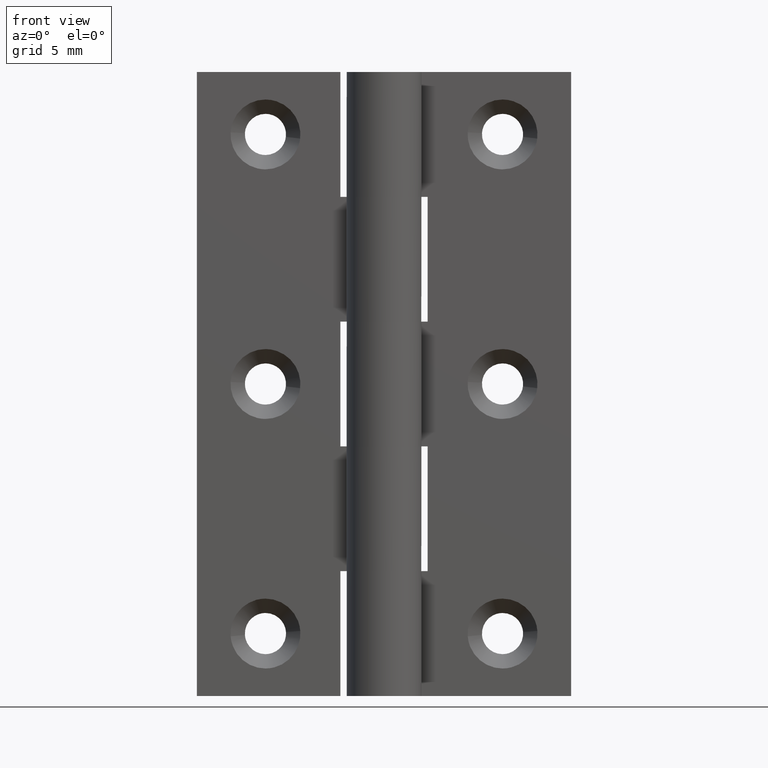
[diagram: clean part render]
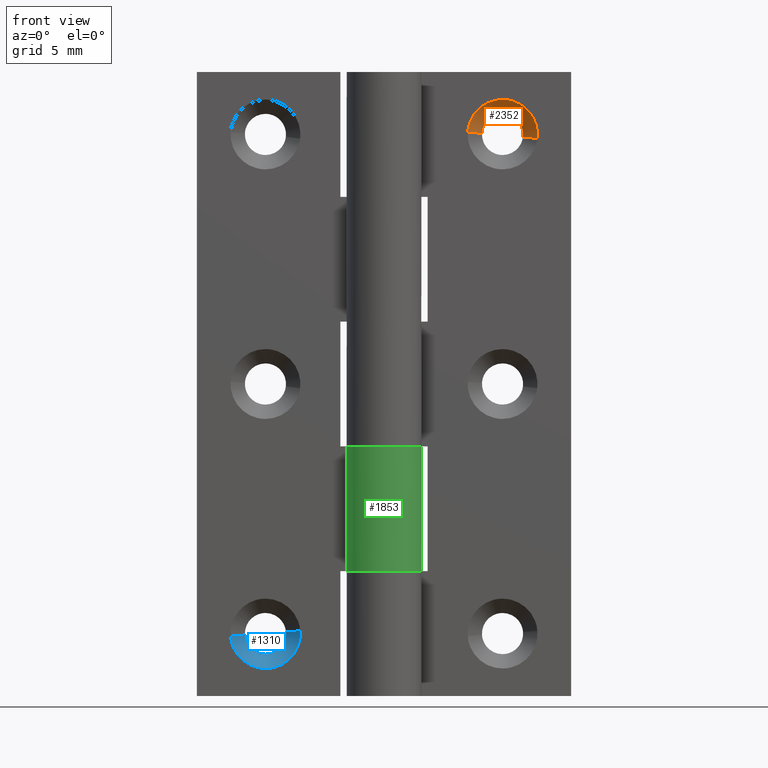
[diagram: same view with three faces highlighted in distinct colors, each labeled with its STEP entity id]
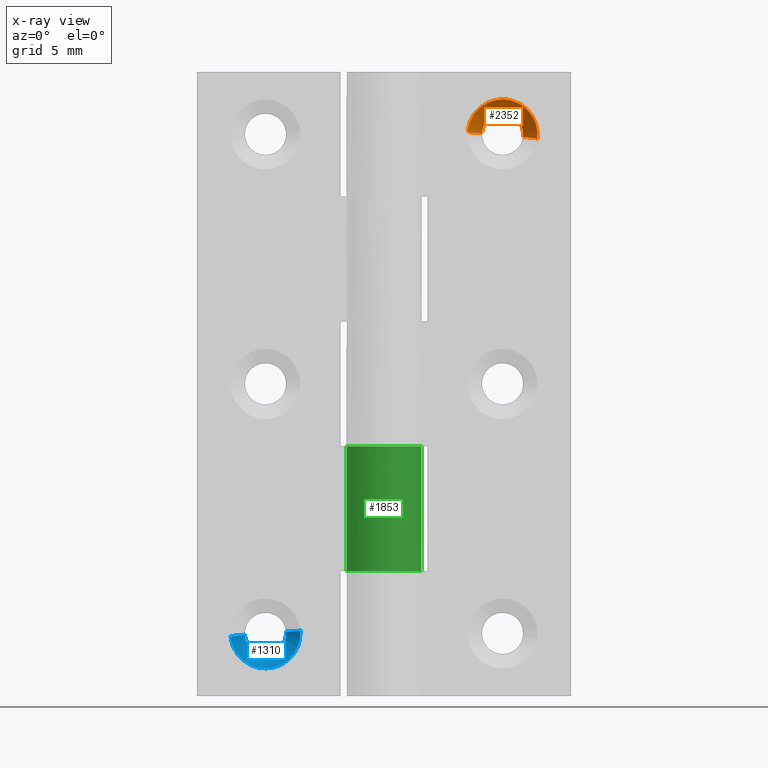
[diagram: x-ray of the same camera — body ghosted, the three highlighted faces saturated]
A machine part, front view with three faces highlighted in distinct colors.
The next image is the same camera in x-ray (body ghosted, the three faces saturated) — at least one of them is partly hidden behind the body in this view.
Their STEP definitions:

[orange] entity #2352 — the highlighted face is a freeform B-spline surface patch.
#2086=CARTESIAN_POINT('',(11.138465718506060,2.649999999909051,44.805243512096368));
#2087=VERTEX_POINT('',#2086);
#2088=CARTESIAN_POINT('',(10.387453809190960,2.650000000000000,46.391016080623253));
#2089=VERTEX_POINT('',#2088);
#2090=CARTESIAN_POINT('',(11.138465718506053,2.649999999909051,44.805243512096361));
#2091=CARTESIAN_POINT('',(11.149999999999995,2.650000000000000,44.902280201857614));
#2092=CARTESIAN_POINT('',(11.150000000000000,2.650000000000000,45.0));
#2093=CARTESIAN_POINT('',(11.150000000000002,2.649999999999999,45.904519532416984));
#2094=CARTESIAN_POINT('',(10.387453809190955,2.650000000000000,46.391016080623238));
#2102=(BOUNDED_CURVE()B_SPLINE_CURVE(2,(#2090,#2091,#2092,#2093,#2094),.UNSPECIFIED.,.F.,.U.)B_SPLINE_CURVE_WITH_KNOTS((3,2,3),(0.229562473369331,0.250000000000000,0.407950112626534),.UNSPECIFIED.)CURVE()GEOMETRIC_REPRESENTATION_ITEM()RATIONAL_B_SPLINE_CURVE((0.956026753901106,0.976055948162231,1.0,0.814949932403469,0.863729296954296))REPRESENTATION_ITEM(''));
#2103=EDGE_CURVE('',#2087,#2089,#2102,.T.);
#2146=CARTESIAN_POINT('',(7.855086399345256,2.650000000000000,45.129457508013417));
#2147=VERTEX_POINT('',#2146);
#2153=CARTESIAN_POINT('',(7.853077582591906,2.649999999977809,45.100730090399587));
#2154=VERTEX_POINT('',#2153);
#2155=CARTESIAN_POINT('',(7.855086399345256,2.650000000000000,45.129457508013417));
#2156=CARTESIAN_POINT('',(7.853956640800782,2.650000000000000,45.115102564658841));
#2157=CARTESIAN_POINT('',(7.853077582591906,2.649999999977809,45.100730090399580));
#2165=(BOUNDED_CURVE()B_SPLINE_CURVE(2,(#2155,#2156,#2157),.UNSPECIFIED.,.F.,.U.)B_SPLINE_CURVE_WITH_KNOTS((3,3),(0.736331300619747,0.739332962207245),.UNSPECIFIED.)CURVE()GEOMETRIC_REPRESENTATION_ITEM()RATIONAL_B_SPLINE_CURVE((0.969723356144644,0.972855475515166,0.976072041598783))REPRESENTATION_ITEM(''));
#2166=EDGE_CURVE('',#2147,#2154,#2165,.T.);
#2219=CARTESIAN_POINT('',(9.500000000000000,2.650000000000000,46.649999999999999));
#2220=VERTEX_POINT('',#2219);
#2221=CARTESIAN_POINT('',(10.387453809190955,2.650000000000000,46.391016080623245));
#2222=CARTESIAN_POINT('',(9.981516291381862,2.650000000000000,46.649999999999999));
#2223=CARTESIAN_POINT('',(9.500000000000000,2.650000000000000,46.649999999999999));
#2231=(BOUNDED_CURVE()B_SPLINE_CURVE(2,(#2221,#2222,#2223),.UNSPECIFIED.,.F.,.U.)B_SPLINE_CURVE_WITH_KNOTS((3,3),(0.407950112626534,0.500000000000000),.UNSPECIFIED.)CURVE()GEOMETRIC_REPRESENTATION_ITEM()RATIONAL_B_SPLINE_CURVE((0.863729296954296,0.892156848783079,1.0))REPRESENTATION_ITEM(''));
#2232=EDGE_CURVE('',#2089,#2220,#2231,.T.);
#2234=CARTESIAN_POINT('',(9.500000000000000,2.650000000000000,46.649999999999999));
#2235=CARTESIAN_POINT('',(7.974755688880155,2.650000000000000,46.649999999999999));
#2236=CARTESIAN_POINT('',(7.855086399345256,2.650000000000000,45.129457508013417));
#2244=(BOUNDED_CURVE()B_SPLINE_CURVE(2,(#2234,#2235,#2236),.UNSPECIFIED.,.F.,.U.)B_SPLINE_CURVE_WITH_KNOTS((3,3),(0.500000000000000,0.736331300619748),.UNSPECIFIED.)CURVE()GEOMETRIC_REPRESENTATION_ITEM()RATIONAL_B_SPLINE_CURVE((1.0,0.723120658620450,0.969723356144645))REPRESENTATION_ITEM(''));
#2245=EDGE_CURVE('',#2220,#2147,#2244,.T.);
#2280=CARTESIAN_POINT('',(11.109916694617093,2.678750000000000,44.808636997062735));
#2281=CARTESIAN_POINT('',(11.115393421546051,2.678750000000000,44.854712121195682));
#2282=CARTESIAN_POINT('',(11.118226041941449,2.678750000000000,44.901025055279113));
#2283=CARTESIAN_POINT('',(11.217200986662336,2.678750000000001,46.519251097220575));
#2284=CARTESIAN_POINT('',(9.598974944720887,2.678750000000000,46.618226041941448));
#2285=CARTESIAN_POINT('',(7.980748902779437,2.678750000000001,46.717200986662334));
#2286=CARTESIAN_POINT('',(7.881773958058551,2.678750000000000,45.098974944720887));
#2287=CARTESIAN_POINT('',(12.309689423298293,1.470531250000000,44.666025821608550));
#2288=CARTESIAN_POINT('',(12.319247620798849,1.470531250000000,44.746437925779112));
#2289=CARTESIAN_POINT('',(12.324191220422220,1.470531250000000,44.827265065152993));
#2290=CARTESIAN_POINT('',(12.496926155269239,1.470531250000000,47.651456285575193));
#2291=CARTESIAN_POINT('',(9.672734934847018,1.470531250000000,47.824191220422222));
#2292=CARTESIAN_POINT('',(6.848543714424797,1.470531250000000,47.996926155269243));
#2293=CARTESIAN_POINT('',(6.675808779577778,1.470531250000000,45.172734934847007));
#2301=(BOUNDED_SURFACE()B_SPLINE_SURFACE(2,1,((#2280,#2287),(#2281,#2288),(#2282,#2289),(#2283,#2290),(#2284,#2291),(#2285,#2292),(#2286,#2293)),.UNSPECIFIED.,.F.,.F.,.U.)B_SPLINE_SURFACE_WITH_KNOTS((3,2,2,3),(2,2),(0.0,0.187520692889736,4.875538015133133,9.563555337376529),(0.0,1.0),.UNSPECIFIED.)GEOMETRIC_REPRESENTATION_ITEM()RATIONAL_B_SPLINE_SURFACE(((0.977505800795127,0.977505800795127),(0.988284271247462,0.988284271247462),(1.0,1.0),(0.707106781186548,0.707106781186548),(1.0,1.0),(0.707106781186548,0.707106781186548),(1.0,1.0)))REPRESENTATION_ITEM('')SURFACE());
#2302=ORIENTED_EDGE('',*,*,#2103,.F.);
#2303=CARTESIAN_POINT('',(12.280426673819210,1.499999999984184,44.669504142834967));
#2304=VERTEX_POINT('',#2303);
#2305=CARTESIAN_POINT('',(11.138465718506060,2.649999999909051,44.805243512096368));
#2306=CARTESIAN_POINT('',(12.280426673819210,1.499999999984184,44.669504142834967));
#2307=QUASI_UNIFORM_CURVE('',1,(#2305,#2306),.UNSPECIFIED.,.F.,.U.);
#2308=EDGE_CURVE('',#2087,#2304,#2307,.T.);
#2309=ORIENTED_EDGE('',*,*,#2308,.T.);
#2310=CARTESIAN_POINT('',(9.500000000000000,1.500000000000000,47.799999999999997));
#2311=VERTEX_POINT('',#2310);
#2312=CARTESIAN_POINT('',(12.280426673819203,1.499999999984184,44.669504142834974));
#2313=CARTESIAN_POINT('',(12.300000000000002,1.500000000000000,44.834172464849104));
#2314=CARTESIAN_POINT('',(12.300000000000001,1.500000000000000,45.0));
#2315=CARTESIAN_POINT('',(12.300000000000002,1.500000000000000,47.799999999999997));
#2316=CARTESIAN_POINT('',(9.500000000000000,1.500000000000000,47.799999999999997));
#2324=(BOUNDED_CURVE()B_SPLINE_CURVE(2,(#2312,#2313,#2314,#2315,#2316),.UNSPECIFIED.,.F.,.U.)B_SPLINE_CURVE_WITH_KNOTS((3,2,3),(0.229562473500541,0.250000000000000,0.500000000000000),.UNSPECIFIED.)CURVE()GEOMETRIC_REPRESENTATION_ITEM()RATIONAL_B_SPLINE_CURVE((0.956026754158284,0.976055948315953,1.0,0.707106781186547,1.0))REPRESENTATION_ITEM(''));
#2325=EDGE_CURVE('',#2304,#2311,#2324,.T.);
#2326=ORIENTED_EDGE('',*,*,#2325,.T.);
#2327=CARTESIAN_POINT('',(6.705222564399779,1.499999999964778,45.170935910964012));
#2328=VERTEX_POINT('',#2327);
#2329=CARTESIAN_POINT('',(9.500000000000000,1.500000000000000,47.799999999999997));
#2330=CARTESIAN_POINT('',(6.866023013163102,1.500000000000000,47.800000000000018));
#2331=CARTESIAN_POINT('',(6.705222564399779,1.499999999964777,45.170935910964005));
#2339=(BOUNDED_CURVE()B_SPLINE_CURVE(2,(#2329,#2330,#2331),.UNSPECIFIED.,.F.,.U.)B_SPLINE_CURVE_WITH_KNOTS((3,3),(0.500000000000000,0.739332962209338),.UNSPECIFIED.)CURVE()GEOMETRIC_REPRESENTATION_ITEM()RATIONAL_B_SPLINE_CURVE((1.0,0.719603993321395,0.976072041603268))REPRESENTATION_ITEM(''));
#2340=EDGE_CURVE('',#2311,#2328,#2339,.T.);
#2341=ORIENTED_EDGE('',*,*,#2340,.T.);
#2342=CARTESIAN_POINT('',(7.853077582591906,2.649999999977809,45.100730090399587));
#2343=CARTESIAN_POINT('',(6.705222564399779,1.499999999964778,45.170935910964012));
#2344=QUASI_UNIFORM_CURVE('',1,(#2342,#2343),.UNSPECIFIED.,.F.,.U.);
#2345=EDGE_CURVE('',#2154,#2328,#2344,.T.);
#2346=ORIENTED_EDGE('',*,*,#2345,.F.);
#2347=ORIENTED_EDGE('',*,*,#2166,.F.);
#2348=ORIENTED_EDGE('',*,*,#2245,.F.);
#2349=ORIENTED_EDGE('',*,*,#2232,.F.);
#2350=EDGE_LOOP('',(#2302,#2309,#2326,#2341,#2346,#2347,#2348,#2349));
#2351=FACE_OUTER_BOUND('',#2350,.T.);
#2352=ADVANCED_FACE('',(#2351),#2301,.F.);

[blue] entity #1310 — the highlighted face is a freeform B-spline surface patch.
#997=CARTESIAN_POINT('',(-7.860775832950925,2.650000000000000,4.811733884720950));
#998=VERTEX_POINT('',#997);
#999=CARTESIAN_POINT('',(-9.500000000000000,2.650000000000000,3.350000000000000));
#1000=VERTEX_POINT('',#999);
#1001=CARTESIAN_POINT('',(-7.860775832950925,2.650000000000000,4.811733884720950));
#1002=CARTESIAN_POINT('',(-8.028657073915877,2.650000000000000,3.350000000000001));
#1003=CARTESIAN_POINT('',(-9.500000000000000,2.650000000000000,3.350000000000000));
#1011=(BOUNDED_CURVE()B_SPLINE_CURVE(2,(#1001,#1002,#1003),.UNSPECIFIED.,.F.,.U.)B_SPLINE_CURVE_WITH_KNOTS((3,3),(0.269767759687762,0.500000000000000),.UNSPECIFIED.)CURVE()GEOMETRIC_REPRESENTATION_ITEM()RATIONAL_B_SPLINE_CURVE((0.957343728942799,0.730266152241266,1.0))REPRESENTATION_ITEM(''));
#1012=EDGE_CURVE('',#998,#1000,#1011,.T.);
#1051=CARTESIAN_POINT('',(-11.146420213219651,2.649999999961683,4.892088055191218));
#1052=VERTEX_POINT('',#1051);
#1058=CARTESIAN_POINT('',(-9.500000000000000,2.650000000000000,3.350000000000000));
#1059=CARTESIAN_POINT('',(-11.045370262166390,2.649999999980841,3.350001540894707));
#1060=CARTESIAN_POINT('',(-11.146420213219654,2.649999999961683,4.892088055191218));
#1068=(BOUNDED_CURVE()B_SPLINE_CURVE(2,(#1058,#1059,#1060),.UNSPECIFIED.,.F.,.U.)B_SPLINE_CURVE_WITH_KNOTS((3,3),(0.500000000000000,0.738580719727876),.UNSPECIFIED.)CURVE()GEOMETRIC_REPRESENTATION_ITEM()RATIONAL_B_SPLINE_CURVE((1.0,0.720485300208289,0.974465146423199))REPRESENTATION_ITEM(''));
#1069=EDGE_CURVE('',#1000,#1052,#1068,.T.);
#1100=CARTESIAN_POINT('',(-7.855086399309636,2.649999999923365,5.129457508537582));
#1101=VERTEX_POINT('',#1100);
#1102=CARTESIAN_POINT('',(-7.855086399309636,2.649999999923365,5.129457508537583));
#1103=CARTESIAN_POINT('',(-7.850000000000001,2.650000000000000,5.064828677145974));
#1104=CARTESIAN_POINT('',(-7.850000000000000,2.650000000000000,5.0));
#1105=CARTESIAN_POINT('',(-7.850000000000000,2.650000000000000,4.905558543568611));
#1106=CARTESIAN_POINT('',(-7.860775832950925,2.650000000000000,4.811733884720950));
#1114=(BOUNDED_CURVE()B_SPLINE_CURVE(2,(#1102,#1103,#1104,#1105,#1106),.UNSPECIFIED.,.F.,.U.)B_SPLINE_CURVE_WITH_KNOTS((3,2,3),(0.236331300511747,0.250000000000000,0.269767759687762),.UNSPECIFIED.)CURVE()GEOMETRIC_REPRESENTATION_ITEM()RATIONAL_B_SPLINE_CURVE((0.969723355919257,0.983986122439568,1.0,0.976840628945282,0.957343728942799))REPRESENTATION_ITEM(''));
#1115=EDGE_CURVE('',#1101,#998,#1114,.T.);
#1203=CARTESIAN_POINT('',(-6.708631465537128,1.499999999974804,5.219685468230582));
#1204=VERTEX_POINT('',#1203);
#1205=CARTESIAN_POINT('',(-7.855086399309636,2.649999999923365,5.129457508537582));
#1206=CARTESIAN_POINT('',(-6.708631465537128,1.499999999974804,5.219685468230582));
#1207=QUASI_UNIFORM_CURVE('',1,(#1205,#1206),.UNSPECIFIED.,.F.,.U.);
#1208=EDGE_CURVE('',#1101,#1204,#1207,.T.);
#1225=CARTESIAN_POINT('',(-12.291368534462871,1.499999999974805,4.780314531769419));
#1226=VERTEX_POINT('',#1225);
#1242=CARTESIAN_POINT('',(-11.146420213219651,2.649999999961683,4.892088055191218));
#1243=CARTESIAN_POINT('',(-12.291368534462871,1.499999999974805,4.780314531769419));
#1244=QUASI_UNIFORM_CURVE('',1,(#1242,#1243),.UNSPECIFIED.,.F.,.U.);
#1245=EDGE_CURVE('',#1052,#1226,#1244,.T.);
#1251=CARTESIAN_POINT('',(-11.119685713545195,2.678750000000000,4.916424770053076));
#1252=CARTESIAN_POINT('',(-11.117978621518795,2.678750000000000,4.894734109262153));
#1253=CARTESIAN_POINT('',(-10.989050418366064,2.678750000000001,3.256545963736397));
#1254=CARTESIAN_POINT('',(-9.372798191051231,2.678750000000000,3.383747772685167));
#1255=CARTESIAN_POINT('',(-7.756545963736397,2.678750000000001,3.510949581633937));
#1256=CARTESIAN_POINT('',(-7.884648736924123,2.678750000000002,5.138649645028863));
#1257=CARTESIAN_POINT('',(-7.885544430031724,2.678750000000001,5.150030505034883));
#1258=CARTESIAN_POINT('',(-12.326738696251407,1.470531249999999,4.854141248167227));
#1259=CARTESIAN_POINT('',(-12.323759412647968,1.470531250000000,4.816285860734833));
#1260=CARTESIAN_POINT('',(-12.098748882616011,1.470531250000000,1.957255998353595));
#1261=CARTESIAN_POINT('',(-9.278002440484803,1.470531250000000,2.179253557868793));
#1262=CARTESIAN_POINT('',(-6.457255998353594,1.470531250000000,2.401251117383990));
#1263=CARTESIAN_POINT('',(-6.680825955808028,1.470531250000001,5.241976769657831));
#1264=CARTESIAN_POINT('',(-6.682389154363190,1.470531250000000,5.261839090543051));
#1272=(BOUNDED_SURFACE()B_SPLINE_SURFACE(2,1,((#1251,#1258),(#1252,#1259),(#1253,#1260),(#1254,#1261),(#1255,#1262),(#1256,#1263),(#1257,#1264)),.UNSPECIFIED.,.F.,.F.,.U.)B_SPLINE_SURFACE_WITH_KNOTS((3,1,2,1,3),(2,2),(0.0,0.090489724900755,4.778507047144152,9.466524369387550,9.513621505682117),(0.0,1.0),.UNSPECIFIED.)GEOMETRIC_REPRESENTATION_ITEM()RATIONAL_B_SPLINE_SURFACE(((1.011307051563130,1.011307051563130),(1.005653525781565,1.005653525781565),(0.707106781186548,0.707106781186548),(1.0,1.0),(0.707106781186548,0.707106781186548),(1.002942487388167,1.002942487388167),(1.005884974776335,1.005884974776335)))REPRESENTATION_ITEM('')SURFACE());
#1273=ORIENTED_EDGE('',*,*,#1115,.T.);
#1274=ORIENTED_EDGE('',*,*,#1012,.T.);
#1275=ORIENTED_EDGE('',*,*,#1069,.T.);
#1276=ORIENTED_EDGE('',*,*,#1245,.T.);
#1277=CARTESIAN_POINT('',(-9.500000000000000,1.500000000000000,2.200000000000000));
#1278=VERTEX_POINT('',#1277);
#1279=CARTESIAN_POINT('',(-9.500000000000000,1.500000000000000,2.200000000000000));
#1280=CARTESIAN_POINT('',(-12.088293376288345,1.500000000000000,2.200000000000000));
#1281=CARTESIAN_POINT('',(-12.291368534462869,1.499999999974804,4.780314531769419));
#1289=(BOUNDED_CURVE()B_SPLINE_CURVE(2,(#1279,#1280,#1281),.UNSPECIFIED.,.F.,.U.)B_SPLINE_CURVE_WITH_KNOTS((3,3),(0.500000000000000,0.736331300609351),.UNSPECIFIED.)CURVE()GEOMETRIC_REPRESENTATION_ITEM()RATIONAL_B_SPLINE_CURVE((1.0,0.723120658632630,0.969723356122949))REPRESENTATION_ITEM(''));
#1290=EDGE_CURVE('',#1278,#1226,#1289,.T.);
#1291=ORIENTED_EDGE('',*,*,#1290,.F.);
#1292=CARTESIAN_POINT('',(-6.708631465537128,1.499999999974805,5.219685468230582));
#1293=CARTESIAN_POINT('',(-6.699999999999999,1.500000000000000,5.110012299812999));
#1294=CARTESIAN_POINT('',(-6.699999999999999,1.500000000000000,5.0));
#1295=CARTESIAN_POINT('',(-6.700000000000000,1.500000000000000,2.200000000000001));
#1296=CARTESIAN_POINT('',(-9.500000000000000,1.500000000000000,2.200000000000000));
#1304=(BOUNDED_CURVE()B_SPLINE_CURVE(2,(#1292,#1293,#1294,#1295,#1296),.UNSPECIFIED.,.F.,.U.)B_SPLINE_CURVE_WITH_KNOTS((3,2,3),(0.236331300609352,0.250000000000000,0.500000000000000),.UNSPECIFIED.)CURVE()GEOMETRIC_REPRESENTATION_ITEM()RATIONAL_B_SPLINE_CURVE((0.969723356122950,0.983986122553918,1.0,0.707106781186547,1.0))REPRESENTATION_ITEM(''));
#1305=EDGE_CURVE('',#1204,#1278,#1304,.T.);
#1306=ORIENTED_EDGE('',*,*,#1305,.F.);
#1307=ORIENTED_EDGE('',*,*,#1208,.F.);
#1308=EDGE_LOOP('',(#1273,#1274,#1275,#1276,#1291,#1306,#1307));
#1309=FACE_OUTER_BOUND('',#1308,.T.);
#1310=ADVANCED_FACE('',(#1309),#1272,.F.);

[green] entity #1853 — the highlighted face is a freeform B-spline surface patch.
#1556=CARTESIAN_POINT('',(-2.626309197333780,1.450000000000000,20.0));
#1557=VERTEX_POINT('',#1556);
#1563=CARTESIAN_POINT('',(-2.480847E-015,3.0,20.0));
#1564=VERTEX_POINT('',#1563);
#1565=CARTESIAN_POINT('',(0.0,3.0,20.0));
#1566=CARTESIAN_POINT('',(2.290598042424806,3.000000000000001,19.999999999999996));
#1567=CARTESIAN_POINT('',(2.894028888043300,0.790314364775726,20.0));
#1568=CARTESIAN_POINT('',(3.497459733661795,-1.419371270448550,19.999999999999996));
#1569=CARTESIAN_POINT('',(1.524795068197693,-2.583602136552762,20.0));
#1570=CARTESIAN_POINT('',(-0.447869597266409,-3.747833002656973,19.999999999999996));
#1571=CARTESIAN_POINT('',(-2.090650590886090,-2.151552952364325,20.0));
#1572=CARTESIAN_POINT('',(-3.733431584505770,-0.555272902071677,19.999999999999996));
#1573=CARTESIAN_POINT('',(-2.626309197333780,1.449999999999999,20.0));
#1581=(BOUNDED_CURVE()B_SPLINE_CURVE(2,(#1565,#1566,#1567,#1568,#1569,#1570,#1571,#1572,#1573),.UNSPECIFIED.,.F.,.U.)B_SPLINE_CURVE_WITH_KNOTS((3,2,2,2,3),(0.0,0.250000000000000,0.500000000000000,0.750000000000000,1.0),.UNSPECIFIED.)CURVE()GEOMETRIC_REPRESENTATION_ITEM()RATIONAL_B_SPLINE_CURVE((1.0,0.794807562115481,1.0,0.794807562115481,1.0,0.794807562115481,1.0,0.794807562115481,1.0))REPRESENTATION_ITEM(''));
#1582=EDGE_CURVE('',#1564,#1557,#1581,.T.);
#1642=CARTESIAN_POINT('',(-2.480847E-015,3.0,10.0));
#1643=VERTEX_POINT('',#1642);
#1649=CARTESIAN_POINT('',(-2.626309197333780,1.450000000000000,10.0));
#1650=VERTEX_POINT('',#1649);
#1651=CARTESIAN_POINT('',(-2.626309197333780,1.450000000000000,10.0));
#1652=CARTESIAN_POINT('',(-3.733431584505770,-0.555272902071676,10.0));
#1653=CARTESIAN_POINT('',(-2.090650590886091,-2.151552952364325,10.0));
#1654=CARTESIAN_POINT('',(-0.447869597266411,-3.747833002656974,10.0));
#1655=CARTESIAN_POINT('',(1.524795068197692,-2.583602136552762,10.0));
#1656=CARTESIAN_POINT('',(3.497459733661794,-1.419371270448551,10.0));
#1657=CARTESIAN_POINT('',(2.894028888043301,0.790314364775725,10.0));
#1658=CARTESIAN_POINT('',(2.290598042424807,3.0,10.0));
#1659=CARTESIAN_POINT('',(0.0,3.0,10.0));
#1667=(BOUNDED_CURVE()B_SPLINE_CURVE(2,(#1651,#1652,#1653,#1654,#1655,#1656,#1657,#1658,#1659),.UNSPECIFIED.,.F.,.U.)B_SPLINE_CURVE_WITH_KNOTS((3,2,2,2,3),(0.0,0.250000000000000,0.500000000000000,0.750000000000000,1.0),.UNSPECIFIED.)CURVE()GEOMETRIC_REPRESENTATION_ITEM()RATIONAL_B_SPLINE_CURVE((1.0,0.794807562115481,1.0,0.794807562115481,1.0,0.794807562115481,1.0,0.794807562115481,1.0))REPRESENTATION_ITEM(''));
#1668=EDGE_CURVE('',#1650,#1643,#1667,.T.);
#1789=CARTESIAN_POINT('',(-2.480847E-015,3.0,10.0));
#1790=CARTESIAN_POINT('',(-2.480847E-015,3.0,20.0));
#1791=QUASI_UNIFORM_CURVE('',1,(#1789,#1790),.UNSPECIFIED.,.F.,.U.);
#1792=EDGE_CURVE('',#1643,#1564,#1791,.T.);
#1821=CARTESIAN_POINT('',(-0.083590388003215,2.998835215051582,9.749999999999998));
#1822=CARTESIAN_POINT('',(-0.083590388003215,2.998835215051582,20.256250000000001));
#1823=CARTESIAN_POINT('',(3.597715494687123,3.101448985074057,9.749999999999998));
#1824=CARTESIAN_POINT('',(3.597715494687123,3.101448985074057,20.256250000000009));
#1825=CARTESIAN_POINT('',(2.953784589413351,-0.524553714450863,9.749999999999998));
#1826=CARTESIAN_POINT('',(2.953784589413351,-0.524553714450863,20.256250000000001));
#1827=CARTESIAN_POINT('',(2.309853684139579,-4.150556413975786,9.749999999999998));
#1828=CARTESIAN_POINT('',(2.309853684139579,-4.150556413975786,20.256250000000009));
#1829=CARTESIAN_POINT('',(-1.111023909722692,-2.786687257663569,9.749999999999998));
#1830=CARTESIAN_POINT('',(-1.111023909722692,-2.786687257663569,20.256250000000001));
#1831=CARTESIAN_POINT('',(-4.531901503584964,-1.422818101351353,9.749999999999998));
#1832=CARTESIAN_POINT('',(-4.531901503584964,-1.422818101351353,20.256250000000009));
#1833=CARTESIAN_POINT('',(-2.504447473759407,1.651587978637567,9.749999999999998));
#1834=CARTESIAN_POINT('',(-2.504447473759407,1.651587978637567,20.256250000000001));
#1842=(BOUNDED_SURFACE()B_SPLINE_SURFACE(1,2,((#1821,#1823,#1825,#1827,#1829,#1831,#1833),(#1822,#1824,#1826,#1828,#1830,#1832,#1834)),.UNSPECIFIED.,.F.,.F.,.U.)B_SPLINE_SURFACE_WITH_KNOTS((2,2),(3,2,2,3),(0.0,10.506250000000000),(0.0,5.702297214197751,11.404594428395500,17.106891642593251),.UNSPECIFIED.)GEOMETRIC_REPRESENTATION_ITEM()RATIONAL_B_SPLINE_SURFACE(((1.0,0.631578351302498,1.0,0.631578351302498,1.0,0.631578351302498,1.0),(1.0,0.631578351302498,1.0,0.631578351302498,1.0,0.631578351302498,1.0)))REPRESENTATION_ITEM('')SURFACE());
#1843=ORIENTED_EDGE('',*,*,#1792,.T.);
#1844=ORIENTED_EDGE('',*,*,#1582,.T.);
#1845=CARTESIAN_POINT('',(-2.626309197333780,1.450000000000000,10.0));
#1846=CARTESIAN_POINT('',(-2.626309197333780,1.450000000000000,20.0));
#1847=QUASI_UNIFORM_CURVE('',1,(#1845,#1846),.UNSPECIFIED.,.F.,.U.);
#1848=EDGE_CURVE('',#1650,#1557,#1847,.T.);
#1849=ORIENTED_EDGE('',*,*,#1848,.F.);
#1850=ORIENTED_EDGE('',*,*,#1668,.T.);
#1851=EDGE_LOOP('',(#1843,#1844,#1849,#1850));
#1852=FACE_OUTER_BOUND('',#1851,.T.);
#1853=ADVANCED_FACE('',(#1852),#1842,.T.);